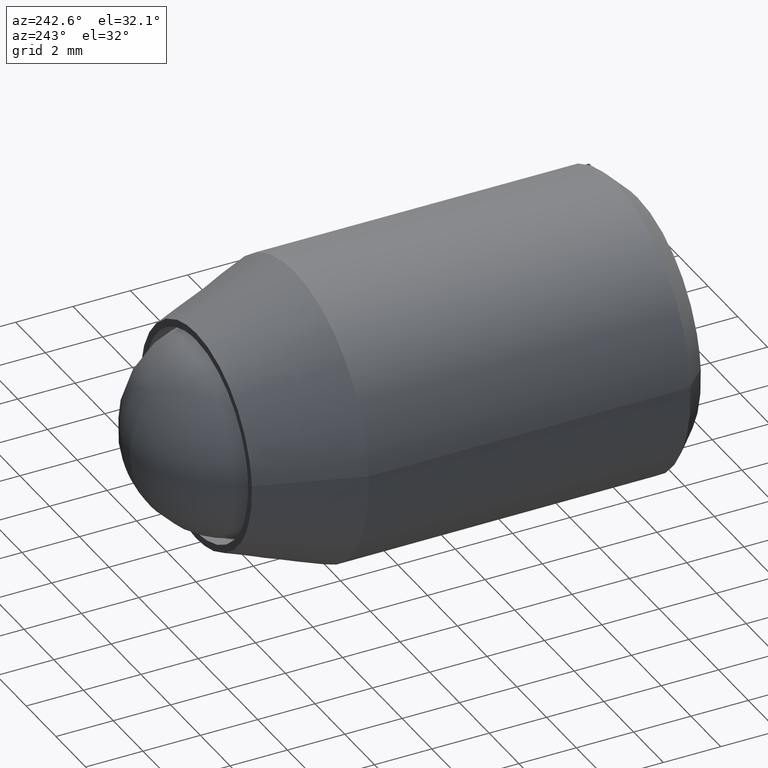
[diagram: clean part render]
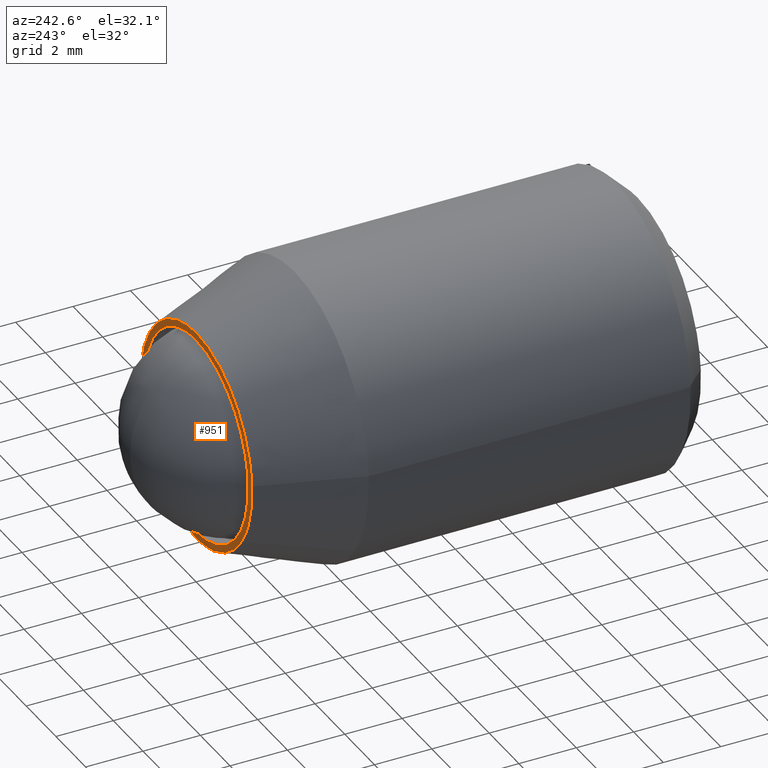
[diagram: same view with one face highlighted and labeled with its STEP entity id]
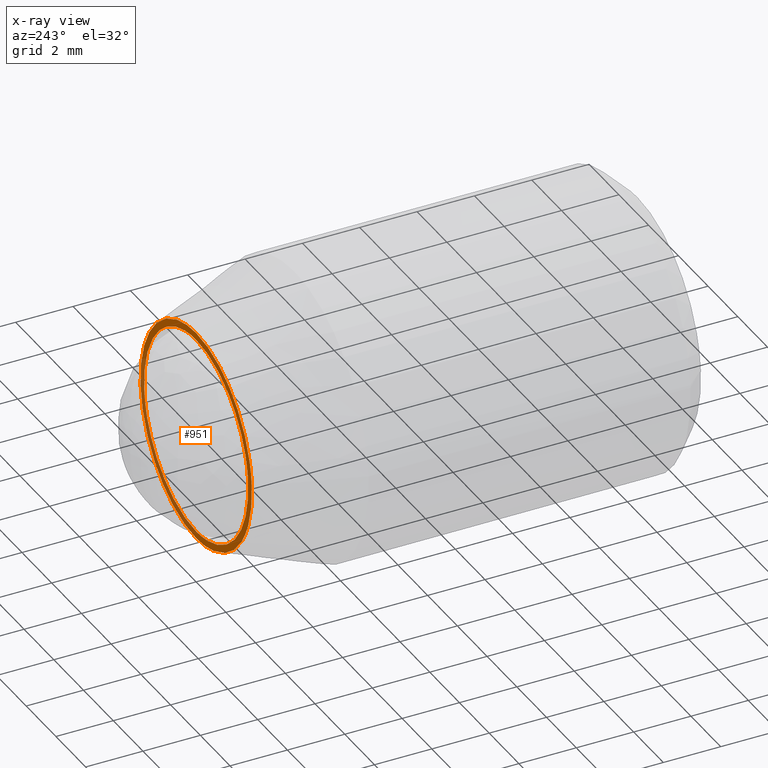
[diagram: x-ray of the same camera — body ghosted, the highlighted face saturated]
A machine part, auxiliary view. The second image highlights one B-rep face of the part: STEP entity #951.
The next image is the same camera in x-ray: the body ghosted, the highlighted face saturated — about 27% of this face is hidden behind the body in this view.
In plain terms, the highlighted face is a freeform B-spline surface patch.
Its self-contained STEP definition (entity closure, byte-faithful):
#104=CARTESIAN_POINT('',(3.493472134167185,-1.110223E-016,-0.213664334334037));
#105=VERTEX_POINT('',#104);
#111=CARTESIAN_POINT('',(0.0,0.0,-3.500000000000000));
#112=VERTEX_POINT('',#111);
#113=CARTESIAN_POINT('',(0.0,0.0,-3.500000000000000));
#114=CARTESIAN_POINT('',(3.292476478435518,0.0,-3.499999999999999));
#115=CARTESIAN_POINT('',(3.493472134167185,-1.110223E-016,-0.213664334334037));
#123=(BOUNDED_CURVE()B_SPLINE_CURVE(2,(#113,#114,#115),.UNSPECIFIED.,.F.,.U.)B_SPLINE_CURVE_WITH_KNOTS((3,3),(0.500000000000000,0.739333236562665),.UNSPECIFIED.)CURVE()GEOMETRIC_REPRESENTATION_ITEM()RATIONAL_B_SPLINE_CURVE((1.0,0.719603671896478,0.976072629595379))REPRESENTATION_ITEM(''));
#124=EDGE_CURVE('',#112,#105,#123,.T.);
#126=CARTESIAN_POINT('',(-3.475533957795948,-1.135771E-016,0.413114642901986));
#127=VERTEX_POINT('',#126);
#128=CARTESIAN_POINT('',(-3.475533957795947,-1.135771E-016,0.413114642901986));
#129=CARTESIAN_POINT('',(-3.500000000000000,0.0,0.207281802211256));
#130=CARTESIAN_POINT('',(-3.500000000000000,0.0,0.0));
#131=CARTESIAN_POINT('',(-3.500000000000000,0.0,-3.500000000000000));
#132=CARTESIAN_POINT('',(0.0,0.0,-3.500000000000000));
#140=(BOUNDED_CURVE()B_SPLINE_CURVE(2,(#128,#129,#130,#131,#132),.UNSPECIFIED.,.F.,.U.)B_SPLINE_CURVE_WITH_KNOTS((3,2,3),(0.229562725323310,0.250000000000000,0.500000000000000),.UNSPECIFIED.)CURVE()GEOMETRIC_REPRESENTATION_ITEM()RATIONAL_B_SPLINE_CURVE((0.956027247741810,0.976056243344679,1.0,0.707106781186547,1.0))REPRESENTATION_ITEM(''));
#141=EDGE_CURVE('',#127,#112,#140,.T.);
#189=CARTESIAN_POINT('',(0.0,0.0,3.500000000000000));
#190=VERTEX_POINT('',#189);
#191=CARTESIAN_POINT('',(0.0,0.0,3.500000000000000));
#192=CARTESIAN_POINT('',(-3.108615505135504,0.0,3.500000000000000));
#193=CARTESIAN_POINT('',(-3.475533957795947,-1.135771E-016,0.413114642901986));
#201=(BOUNDED_CURVE()B_SPLINE_CURVE(2,(#191,#192,#193),.UNSPECIFIED.,.F.,.U.)B_SPLINE_CURVE_WITH_KNOTS((3,3),(0.0,0.229562725323310),.UNSPECIFIED.)CURVE()GEOMETRIC_REPRESENTATION_ITEM()RATIONAL_B_SPLINE_CURVE((1.0,0.731050537841869,0.956027247741810))REPRESENTATION_ITEM(''));
#202=EDGE_CURVE('',#190,#127,#201,.T.);
#204=CARTESIAN_POINT('',(3.493472134167185,-1.110223E-016,-0.213664334334037));
#205=CARTESIAN_POINT('',(3.500000000000001,0.0,-0.106931886739928));
#206=CARTESIAN_POINT('',(3.500000000000000,0.0,0.0));
#207=CARTESIAN_POINT('',(3.500000000000000,0.0,3.500000000000000));
#208=CARTESIAN_POINT('',(0.0,0.0,3.500000000000000));
#216=(BOUNDED_CURVE()B_SPLINE_CURVE(2,(#204,#205,#206,#207,#208),.UNSPECIFIED.,.F.,.U.)B_SPLINE_CURVE_WITH_KNOTS((3,2,3),(0.739333236562665,0.750000000000000,1.0),.UNSPECIFIED.)CURVE()GEOMETRIC_REPRESENTATION_ITEM()RATIONAL_B_SPLINE_CURVE((0.976072629595379,0.987503109290069,1.0,0.707106781186547,1.0))REPRESENTATION_ITEM(''));
#217=EDGE_CURVE('',#105,#190,#216,.T.);
#264=CARTESIAN_POINT('',(-3.041150897749457,6.026009E-009,-2.194060436876802));
#265=VERTEX_POINT('',#264);
#266=CARTESIAN_POINT('',(0.0,0.0,-3.750000000000001));
#267=VERTEX_POINT('',#266);
#268=CARTESIAN_POINT('',(-3.041150897749456,6.026009E-009,-2.194060436876802));
#269=CARTESIAN_POINT('',(-1.918606985505606,0.0,-3.750000000000001));
#270=CARTESIAN_POINT('',(0.0,0.0,-3.750000000000001));
#278=(BOUNDED_CURVE()B_SPLINE_CURVE(2,(#268,#269,#270),.UNSPECIFIED.,.F.,.U.)B_SPLINE_CURVE_WITH_KNOTS((3,3),(0.850743050259086,1.0),.UNSPECIFIED.)CURVE()GEOMETRIC_REPRESENTATION_ITEM()RATIONAL_B_SPLINE_CURVE((0.859068214783233,0.825134606240424,1.0))REPRESENTATION_ITEM(''));
#279=EDGE_CURVE('',#265,#267,#278,.T.);
#281=CARTESIAN_POINT('',(0.0,0.0,3.749999999999999));
#282=VERTEX_POINT('',#281);
#283=CARTESIAN_POINT('',(0.0,0.0,-3.750000000000001));
#284=CARTESIAN_POINT('',(3.750000000000000,0.0,-3.750000000000002));
#285=CARTESIAN_POINT('',(3.750000000000000,0.0,-7.898711E-016));
#286=CARTESIAN_POINT('',(3.750000000000000,0.0,3.749999999999999));
#287=CARTESIAN_POINT('',(0.0,0.0,3.749999999999999));
#295=(BOUNDED_CURVE()B_SPLINE_CURVE(2,(#283,#284,#285,#286,#287),.UNSPECIFIED.,.F.,.U.)B_SPLINE_CURVE_WITH_KNOTS((3,2,3),(0.0,0.250000000000000,0.500000000000000),.UNSPECIFIED.)CURVE()GEOMETRIC_REPRESENTATION_ITEM()RATIONAL_B_SPLINE_CURVE((1.0,0.707106781186547,1.0,0.707106781186547,1.0))REPRESENTATION_ITEM(''));
#296=EDGE_CURVE('',#267,#282,#295,.T.);
#298=CARTESIAN_POINT('',(-3.743005494082037,-1.182228E-012,0.228932023262176));
#299=VERTEX_POINT('',#298);
#300=CARTESIAN_POINT('',(0.0,0.0,3.749999999999999));
#301=CARTESIAN_POINT('',(-3.527647750884189,0.0,3.749999999999999));
#302=CARTESIAN_POINT('',(-3.743005494082037,-1.182228E-012,0.228932023262176));
#310=(BOUNDED_CURVE()B_SPLINE_CURVE(2,(#300,#301,#302),.UNSPECIFIED.,.F.,.U.)B_SPLINE_CURVE_WITH_KNOTS((3,3),(0.500000000000000,0.739332962241374),.UNSPECIFIED.)CURVE()GEOMETRIC_REPRESENTATION_ITEM()RATIONAL_B_SPLINE_CURVE((1.0,0.719603993283862,0.976072041671929))REPRESENTATION_ITEM(''));
#311=EDGE_CURVE('',#282,#299,#310,.T.);
#404=CARTESIAN_POINT('',(-3.743005494082037,-1.182228E-012,0.228932023262176));
#405=CARTESIAN_POINT('',(-3.750000000000000,0.0,0.114572862376163));
#406=CARTESIAN_POINT('',(-3.750000000000000,0.0,-7.898711E-016));
#407=CARTESIAN_POINT('',(-3.749999999999999,0.0,-1.211536418367770));
#408=CARTESIAN_POINT('',(-3.041150897749456,6.026009E-009,-2.194060436876802));
#416=(BOUNDED_CURVE()B_SPLINE_CURVE(2,(#404,#405,#406,#407,#408),.UNSPECIFIED.,.F.,.U.)B_SPLINE_CURVE_WITH_KNOTS((3,2,3),(0.739332962241375,0.750000000000000,0.850743050259086),.UNSPECIFIED.)CURVE()GEOMETRIC_REPRESENTATION_ITEM()RATIONAL_B_SPLINE_CURVE((0.976072041671930,0.987502787902687,1.0,0.881972174946123,0.859068214783233))REPRESENTATION_ITEM(''));
#417=EDGE_CURVE('',#299,#265,#416,.T.);
#934=CARTESIAN_POINT('',(-4.124513605332743,0.0,-4.124624985463545));
#935=CARTESIAN_POINT('',(-4.124513605332743,0.0,4.124625186629221));
#936=CARTESIAN_POINT('',(4.124619887864958,0.0,-4.124624985463545));
#937=CARTESIAN_POINT('',(4.124619887864958,0.0,4.124625186629221));
#938=B_SPLINE_SURFACE_WITH_KNOTS('',1,1,((#934,#936),(#935,#937)),.UNSPECIFIED.,.F.,.F.,.U.,(2,2),(2,2),(0.0,8.249250172092765),(0.0,8.249133493197700),.UNSPECIFIED.);
#939=ORIENTED_EDGE('',*,*,#279,.F.);
#940=ORIENTED_EDGE('',*,*,#417,.F.);
#941=ORIENTED_EDGE('',*,*,#311,.F.);
#942=ORIENTED_EDGE('',*,*,#296,.F.);
#943=EDGE_LOOP('',(#939,#940,#941,#942));
#944=FACE_OUTER_BOUND('',#943,.T.);
#945=ORIENTED_EDGE('',*,*,#124,.T.);
#946=ORIENTED_EDGE('',*,*,#217,.T.);
#947=ORIENTED_EDGE('',*,*,#202,.T.);
#948=ORIENTED_EDGE('',*,*,#141,.T.);
#949=EDGE_LOOP('',(#945,#946,#947,#948));
#950=FACE_BOUND('',#949,.T.);
#951=ADVANCED_FACE('',(#944,#950),#938,.T.);